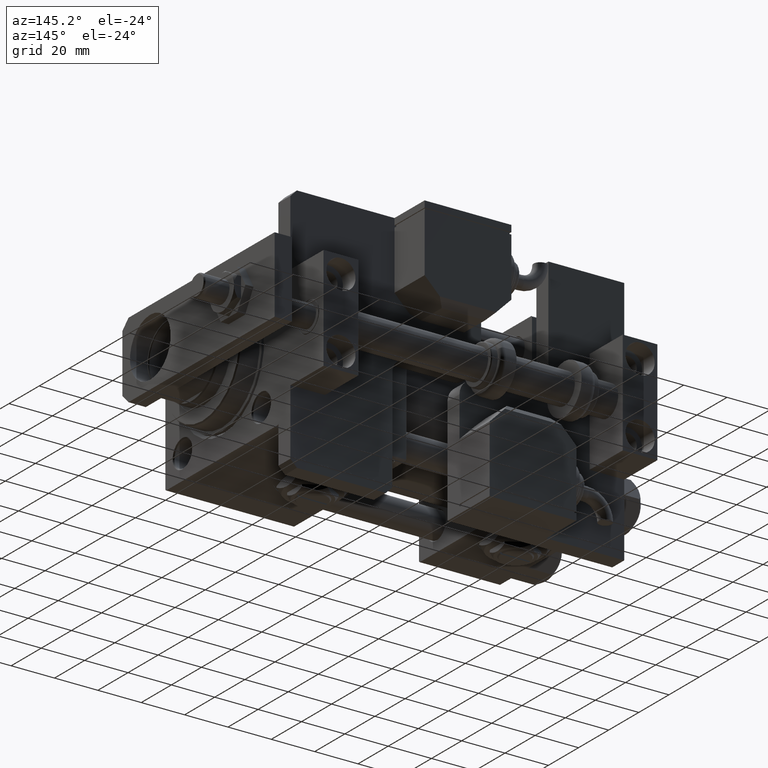
[diagram: clean part render]
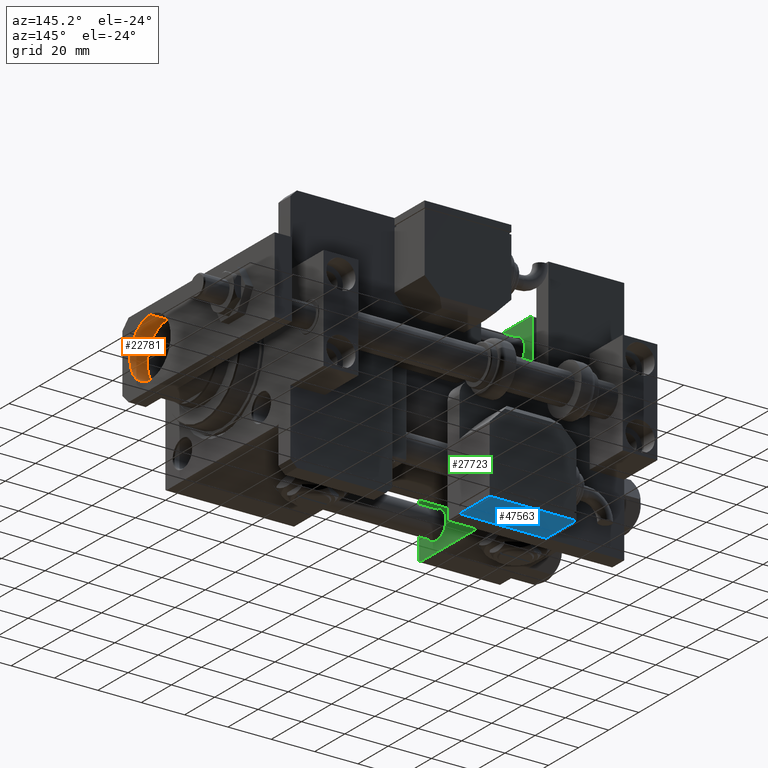
[diagram: same view with three faces highlighted in distinct colors, each labeled with its STEP entity id]
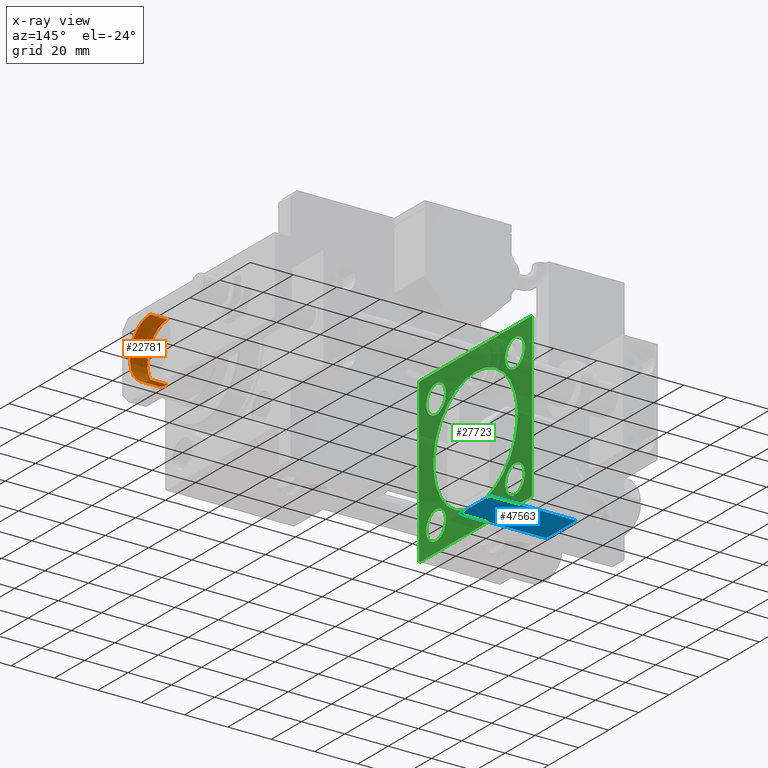
[diagram: x-ray of the same camera — body ghosted, the three highlighted faces saturated]
A machine part, auxiliary view with three faces highlighted in distinct colors.
The next image is the same camera in x-ray (body ghosted, the three faces saturated) — at least one of them is partly hidden behind the body in this view.
Their STEP definitions:

[orange] entity #22781 — the highlighted cylindrical surface (edge-blend (fillet) strip) has radius 13.5 mm, axis along (-1, -0, 0).
#196 = FACE_OUTER_BOUND ( 'NONE', #25646, .T. ) ;
#667 = LINE ( 'NONE', #53708, #36375 ) ;
#5710 = EDGE_CURVE ( 'NONE', #30811, #26266, #14705, .T. ) ;
#5725 = EDGE_CURVE ( 'NONE', #30405, #47269, #667, .T. ) ;
#6035 = CYLINDRICAL_SURFACE ( 'NONE', #15446, 13.50000000000000000 ) ;
#7289 = CARTESIAN_POINT ( 'NONE',  ( 13.50000000000000000, 18.50000000000001066, 0.000000000000000000 ) ) ;
#7716 = EDGE_CURVE ( 'NONE', #47269, #26266, #30861, .T. ) ;
#11121 = VECTOR ( 'NONE', #23488, 1000.000000000000000 ) ;
#14252 = DIRECTION ( 'NONE',  ( -0.000000000000000000, -0.000000000000000000, -1.000000000000000000 ) ) ;
#14705 = LINE ( 'NONE', #35813, #11121 ) ;
#15446 = AXIS2_PLACEMENT_3D ( 'NONE', #32124, #14252, #49718 ) ;
#16018 = CARTESIAN_POINT ( 'NONE',  ( 0.000000000000000000, 18.50000000000001066, 0.000000000000000000 ) ) ;
#17022 = ORIENTED_EDGE ( 'NONE', *, *, #5710, .T. ) ;
#20557 = AXIS2_PLACEMENT_3D ( 'NONE', #16018, #23951, #28653 ) ;
#21860 = ORIENTED_EDGE ( 'NONE', *, *, #50264, .T. ) ;
#22781 = ADVANCED_FACE ( 'NONE', ( #196 ), #6035, .F. ) ;
#23488 = DIRECTION ( 'NONE',  ( -0.000000000000000000, -0.000000000000000000, -1.000000000000000000 ) ) ;
#23951 = DIRECTION ( 'NONE',  ( 0.000000000000000000, 0.000000000000000000, 1.000000000000000000 ) ) ;
#25646 = EDGE_LOOP ( 'NONE', ( #21860, #17022, #48930, #50442 ) ) ;
#26266 = VERTEX_POINT ( 'NONE', #7289 ) ;
#27297 = CARTESIAN_POINT ( 'NONE',  ( -13.50000000000000000, 18.50000000000001066, 8.000000000000000000 ) ) ;
#28653 = DIRECTION ( 'NONE',  ( 1.000000000000000000, 0.000000000000000000, 0.000000000000000000 ) ) ;
#30081 = CARTESIAN_POINT ( 'NONE',  ( 0.000000000000000000, 18.50000000000001066, 8.000000000000000000 ) ) ;
#30405 = VERTEX_POINT ( 'NONE', #27297 ) ;
#30493 = AXIS2_PLACEMENT_3D ( 'NONE', #30081, #40018, #34752 ) ;
#30811 = VERTEX_POINT ( 'NONE', #40344 ) ;
#30861 = CIRCLE ( 'NONE', #20557, 13.50000000000000000 ) ;
#31418 = DIRECTION ( 'NONE',  ( -0.000000000000000000, -0.000000000000000000, -1.000000000000000000 ) ) ;
#32124 = CARTESIAN_POINT ( 'NONE',  ( 0.000000000000000000, 18.50000000000001066, 8.000000000000000000 ) ) ;
#34752 = DIRECTION ( 'NONE',  ( 1.000000000000000000, 0.000000000000000000, 0.000000000000000000 ) ) ;
#35813 = CARTESIAN_POINT ( 'NONE',  ( 13.50000000000000000, 18.50000000000001066, 8.000000000000000000 ) ) ;
#36375 = VECTOR ( 'NONE', #31418, 1000.000000000000000 ) ;
#40018 = DIRECTION ( 'NONE',  ( 0.000000000000000000, 0.000000000000000000, 1.000000000000000000 ) ) ;
#40344 = CARTESIAN_POINT ( 'NONE',  ( 13.50000000000000000, 18.50000000000001066, 8.000000000000000000 ) ) ;
#41023 = CARTESIAN_POINT ( 'NONE',  ( -13.50000000000000000, 18.50000000000001066, 0.000000000000000000 ) ) ;
#47269 = VERTEX_POINT ( 'NONE', #41023 ) ;
#48930 = ORIENTED_EDGE ( 'NONE', *, *, #7716, .F. ) ;
#49718 = DIRECTION ( 'NONE',  ( -1.000000000000000000, 0.000000000000000000, 0.000000000000000000 ) ) ;
#50264 = EDGE_CURVE ( 'NONE', #30405, #30811, #55792, .T. ) ;
#50442 = ORIENTED_EDGE ( 'NONE', *, *, #5725, .F. ) ;
#53708 = CARTESIAN_POINT ( 'NONE',  ( -13.50000000000000000, 18.50000000000001066, 8.000000000000000000 ) ) ;
#55792 = CIRCLE ( 'NONE', #30493, 13.50000000000000000 ) ;

[blue] entity #47563 — the highlighted planar face has unit normal (0, 0, 1).
#2049 = CARTESIAN_POINT ( 'NONE',  ( -19.99999999999994316, -17.49999999999996092, 10.00000000000000000 ) ) ;
#2483 = CARTESIAN_POINT ( 'NONE',  ( 20.00000000000005329, -17.49999999999996092, -9.999999999999998224 ) ) ;
#3836 = DIRECTION ( 'NONE',  ( 0.000000000000000000, -0.000000000000000000, 1.000000000000000000 ) ) ;
#4462 = ORIENTED_EDGE ( 'NONE', *, *, #19894, .T. ) ;
#6140 = DIRECTION ( 'NONE',  ( -1.000000000000000000, -0.000000000000000000, -0.000000000000000000 ) ) ;
#12274 = EDGE_LOOP ( 'NONE', ( #24013, #37442, #4462, #23839 ) ) ;
#13185 = PLANE ( 'NONE',  #46324 ) ;
#13698 = CARTESIAN_POINT ( 'NONE',  ( -19.99999999999994316, -17.49999999999996092, 10.00000000000000000 ) ) ;
#19894 = EDGE_CURVE ( 'NONE', #42186, #28790, #49529, .T. ) ;
#20895 = LINE ( 'NONE', #2483, #49257 ) ;
#23839 = ORIENTED_EDGE ( 'NONE', *, *, #39612, .T. ) ;
#24013 = ORIENTED_EDGE ( 'NONE', *, *, #25633, .T. ) ;
#25301 = EDGE_CURVE ( 'NONE', #49550, #42186, #56241, .T. ) ;
#25444 = LINE ( 'NONE', #42758, #57340 ) ;
#25633 = EDGE_CURVE ( 'NONE', #29930, #49550, #20895, .T. ) ;
#25735 = DIRECTION ( 'NONE',  ( 1.000000000000000000, 0.000000000000000000, 0.000000000000000000 ) ) ;
#26085 = CARTESIAN_POINT ( 'NONE',  ( 0.000000000000000000, -17.49999999999996092, 0.000000000000000000 ) ) ;
#28790 = VERTEX_POINT ( 'NONE', #28838 ) ;
#28838 = CARTESIAN_POINT ( 'NONE',  ( -19.99999999999994316, -17.49999999999996092, -9.999999999999998224 ) ) ;
#29930 = VERTEX_POINT ( 'NONE', #44800 ) ;
#32503 = DIRECTION ( 'NONE',  ( -0.000000000000000000, -0.000000000000000000, -1.000000000000000000 ) ) ;
#33104 = VECTOR ( 'NONE', #32503, 1000.000000000000000 ) ;
#34300 = FACE_OUTER_BOUND ( 'NONE', #12274, .T. ) ;
#37442 = ORIENTED_EDGE ( 'NONE', *, *, #25301, .T. ) ;
#39567 = DIRECTION ( 'NONE',  ( 0.000000000000000000, 1.000000000000000000, 0.000000000000000000 ) ) ;
#39612 = EDGE_CURVE ( 'NONE', #28790, #29930, #25444, .T. ) ;
#40829 = VECTOR ( 'NONE', #6140, 1000.000000000000000 ) ;
#42186 = VERTEX_POINT ( 'NONE', #13698 ) ;
#42758 = CARTESIAN_POINT ( 'NONE',  ( -19.99999999999994316, -17.49999999999996092, -9.999999999999998224 ) ) ;
#44532 = CARTESIAN_POINT ( 'NONE',  ( -19.99999999999994316, -17.49999999999996092, -9.999999999999998224 ) ) ;
#44800 = CARTESIAN_POINT ( 'NONE',  ( 20.00000000000005329, -17.49999999999996092, -9.999999999999998224 ) ) ;
#46324 = AXIS2_PLACEMENT_3D ( 'NONE', #26085, #39567, #3836 ) ;
#47563 = ADVANCED_FACE ( 'NONE', ( #34300 ), #13185, .F. ) ;
#49257 = VECTOR ( 'NONE', #52273, 1000.000000000000000 ) ;
#49529 = LINE ( 'NONE', #44532, #33104 ) ;
#49550 = VERTEX_POINT ( 'NONE', #54533 ) ;
#52273 = DIRECTION ( 'NONE',  ( 0.000000000000000000, 0.000000000000000000, 1.000000000000000000 ) ) ;
#54533 = CARTESIAN_POINT ( 'NONE',  ( 20.00000000000005329, -17.49999999999996092, 10.00000000000000000 ) ) ;
#56241 = LINE ( 'NONE', #2049, #40829 ) ;
#57340 = VECTOR ( 'NONE', #25735, 1000.000000000000000 ) ;

[green] entity #27723 — the highlighted planar face has unit normal (-1, 0, 0).
#289 = VERTEX_POINT ( 'NONE', #31465 ) ;
#304 = DIRECTION ( 'NONE',  ( 0.000000000000000000, 0.000000000000000000, -1.000000000000000000 ) ) ;
#368 = CARTESIAN_POINT ( 'NONE',  ( 37.00000000000000000, -37.50000000000000000, -37.00000000000003553 ) ) ;
#1063 = VERTEX_POINT ( 'NONE', #49116 ) ;
#1327 = LINE ( 'NONE', #28854, #43628 ) ;
#1603 = CARTESIAN_POINT ( 'NONE',  ( 37.00000000000000000, -37.50000000000000711, 36.99999999999999289 ) ) ;
#1606 = CARTESIAN_POINT ( 'NONE',  ( 37.00000000000000000, -37.00000000000002132, -37.50000000000000711 ) ) ;
#2679 = LINE ( 'NONE', #20805, #26967 ) ;
#3318 = DIRECTION ( 'NONE',  ( 0.000000000000000000, 0.000000000000000000, 1.000000000000000000 ) ) ;
#3414 = EDGE_LOOP ( 'NONE', ( #33853, #51745 ) ) ;
#3817 = DIRECTION ( 'NONE',  ( -0.000000000000000000, 0.7071067811865474617, 0.7071067811865474617 ) ) ;
#4129 = EDGE_CURVE ( 'NONE', #34092, #5463, #23910, .T. ) ;
#4283 = CIRCLE ( 'NONE', #34214, 6.500000000000008882 ) ;
#4919 = EDGE_CURVE ( 'NONE', #289, #51970, #2679, .T. ) ;
#5060 = ORIENTED_EDGE ( 'NONE', *, *, #10148, .T. ) ;
#5183 = CARTESIAN_POINT ( 'NONE',  ( 37.00000000000000000, 37.49999999999999289, -37.50000000000000000 ) ) ;
#5457 = DIRECTION ( 'NONE',  ( 0.000000000000000000, -1.000000000000000000, -9.251858538542971581E-17 ) ) ;
#5463 = VERTEX_POINT ( 'NONE', #1606 ) ;
#6037 = LINE ( 'NONE', #33564, #10443 ) ;
#6074 = VERTEX_POINT ( 'NONE', #50394 ) ;
#6163 = AXIS2_PLACEMENT_3D ( 'NONE', #12446, #39974, #25624 ) ;
#6336 = DIRECTION ( 'NONE',  ( 0.000000000000000000, 0.7071067811865524577, -0.7071067811865426878 ) ) ;
#6577 = DIRECTION ( 'NONE',  ( 0.000000000000000000, 9.251858538542971581E-17, -1.000000000000000000 ) ) ;
#6736 = VERTEX_POINT ( 'NONE', #20753 ) ;
#6745 = DIRECTION ( 'NONE',  ( 1.000000000000000000, -0.000000000000000000, 0.000000000000000000 ) ) ;
#6821 = EDGE_LOOP ( 'NONE', ( #24500, #53790 ) ) ;
#6875 = LINE ( 'NONE', #25022, #57023 ) ;
#7176 = EDGE_CURVE ( 'NONE', #6074, #18375, #6875, .T. ) ;
#7874 = VERTEX_POINT ( 'NONE', #20073 ) ;
#8342 = FACE_BOUND ( 'NONE', #18694, .T. ) ;
#8731 = ORIENTED_EDGE ( 'NONE', *, *, #7176, .T. ) ;
#9620 = EDGE_CURVE ( 'NONE', #289, #5463, #44457, .T. ) ;
#9747 = CARTESIAN_POINT ( 'NONE',  ( 37.00000000000000000, 8.269258236473776482E-16, -28.00000000000000000 ) ) ;
#9801 = CIRCLE ( 'NONE', #50048, 6.500000000000030198 ) ;
#9860 = AXIS2_PLACEMENT_3D ( 'NONE', #45500, #35824, #53715 ) ;
#10148 = EDGE_CURVE ( 'NONE', #57334, #1063, #41722, .T. ) ;
#10334 = ORIENTED_EDGE ( 'NONE', *, *, #45963, .T. ) ;
#10443 = VECTOR ( 'NONE', #5457, 1000.000000000000000 ) ;
#10828 = CARTESIAN_POINT ( 'NONE',  ( 37.00000000000000000, -37.00000000000000711, 37.49999999999999289 ) ) ;
#11263 = CARTESIAN_POINT ( 'NONE',  ( 37.00000000000000000, 26.14999999999999858, -26.15000000000000213 ) ) ;
#11351 = DIRECTION ( 'NONE',  ( 0.000000000000000000, 0.000000000000000000, 1.000000000000000000 ) ) ;
#11662 = ORIENTED_EDGE ( 'NONE', *, *, #4129, .T. ) ;
#12083 = EDGE_CURVE ( 'NONE', #18375, #57334, #6037, .T. ) ;
#12446 = CARTESIAN_POINT ( 'NONE',  ( 37.00000000000000000, 0.000000000000000000, 0.000000000000000000 ) ) ;
#13507 = EDGE_CURVE ( 'NONE', #6736, #24163, #55436, .T. ) ;
#13689 = DIRECTION ( 'NONE',  ( 0.000000000000000000, 0.000000000000000000, 1.000000000000000000 ) ) ;
#14205 = EDGE_CURVE ( 'NONE', #7874, #21260, #40513, .T. ) ;
#15365 = DIRECTION ( 'NONE',  ( 0.000000000000000000, 0.000000000000000000, 1.000000000000000000 ) ) ;
#15718 = VECTOR ( 'NONE', #6336, 1000.000000000000000 ) ;
#15721 = ORIENTED_EDGE ( 'NONE', *, *, #24279, .T. ) ;
#16231 = EDGE_CURVE ( 'NONE', #48295, #30310, #46090, .T. ) ;
#16858 = ORIENTED_EDGE ( 'NONE', *, *, #35998, .F. ) ;
#17608 = CARTESIAN_POINT ( 'NONE',  ( 37.00000000000000000, 26.14999999999999858, -32.65000000000003411 ) ) ;
#18375 = VERTEX_POINT ( 'NONE', #30040 ) ;
#18694 = EDGE_LOOP ( 'NONE', ( #15721, #27406 ) ) ;
#20073 = CARTESIAN_POINT ( 'NONE',  ( 37.00000000000000000, -26.14999999999999147, 32.65000000000001990 ) ) ;
#20148 = CARTESIAN_POINT ( 'NONE',  ( 37.00000000000000000, -26.14999999999999147, -19.65000000000000924 ) ) ;
#20753 = CARTESIAN_POINT ( 'NONE',  ( 37.00000000000000000, 26.14999999999999858, -19.64999999999997371 ) ) ;
#20805 = CARTESIAN_POINT ( 'NONE',  ( 37.00000000000000000, 37.49999999999999289, -36.99999999999998579 ) ) ;
#21034 = AXIS2_PLACEMENT_3D ( 'NONE', #23960, #38303, #11351 ) ;
#21237 = DIRECTION ( 'NONE',  ( 0.000000000000000000, 0.000000000000000000, 1.000000000000000000 ) ) ;
#21260 = VERTEX_POINT ( 'NONE', #23590 ) ;
#22323 = ORIENTED_EDGE ( 'NONE', *, *, #37108, .T. ) ;
#22491 = EDGE_CURVE ( 'NONE', #30310, #48295, #37870, .T. ) ;
#22539 = DIRECTION ( 'NONE',  ( -1.000000000000000000, 0.000000000000000000, -0.000000000000000000 ) ) ;
#22576 = VERTEX_POINT ( 'NONE', #20148 ) ;
#23469 = VECTOR ( 'NONE', #304, 1000.000000000000000 ) ;
#23590 = CARTESIAN_POINT ( 'NONE',  ( 37.00000000000000000, -26.14999999999999147, 19.65000000000000213 ) ) ;
#23817 = DIRECTION ( 'NONE',  ( -1.000000000000000000, 0.000000000000000000, -0.000000000000000000 ) ) ;
#23862 = ORIENTED_EDGE ( 'NONE', *, *, #4919, .T. ) ;
#23910 = LINE ( 'NONE', #42657, #15718 ) ;
#23960 = CARTESIAN_POINT ( 'NONE',  ( 37.00000000000000000, -2.602085213965210642E-15, 0.000000000000000000 ) ) ;
#24163 = VERTEX_POINT ( 'NONE', #17608 ) ;
#24279 = EDGE_CURVE ( 'NONE', #21260, #7874, #4283, .T. ) ;
#24500 = ORIENTED_EDGE ( 'NONE', *, *, #22491, .F. ) ;
#24737 = DIRECTION ( 'NONE',  ( 0.000000000000000000, -0.7071067811865474617, 0.7071067811865474617 ) ) ;
#25022 = CARTESIAN_POINT ( 'NONE',  ( 37.00000000000000000, 36.99999999999999289, 37.50000000000000000 ) ) ;
#25067 = CIRCLE ( 'NONE', #40955, 6.500000000000002665 ) ;
#25336 = FACE_OUTER_BOUND ( 'NONE', #41165, .T. ) ;
#25485 = EDGE_CURVE ( 'NONE', #1063, #34092, #1327, .T. ) ;
#25624 = DIRECTION ( 'NONE',  ( -0.000000000000000000, 0.000000000000000000, 1.000000000000000000 ) ) ;
#26967 = VECTOR ( 'NONE', #3817, 1000.000000000000114 ) ;
#27406 = ORIENTED_EDGE ( 'NONE', *, *, #14205, .T. ) ;
#27723 = ADVANCED_FACE ( 'NONE', ( #34422, #29755, #8342, #35285, #52605, #25336 ), #35579, .F. ) ;
#28692 = VERTEX_POINT ( 'NONE', #44979 ) ;
#28854 = CARTESIAN_POINT ( 'NONE',  ( 37.00000000000000000, -37.50000000000000711, 37.49999999999999289 ) ) ;
#29225 = AXIS2_PLACEMENT_3D ( 'NONE', #38094, #6745, #38373 ) ;
#29229 = EDGE_CURVE ( 'NONE', #22576, #37399, #25067, .T. ) ;
#29679 = CARTESIAN_POINT ( 'NONE',  ( 37.00000000000000000, -2.602085213965210642E-15, 28.00000000000000000 ) ) ;
#29755 = FACE_BOUND ( 'NONE', #37295, .T. ) ;
#30040 = CARTESIAN_POINT ( 'NONE',  ( 37.00000000000000000, 36.99999999999999289, 37.50000000000000000 ) ) ;
#30310 = VERTEX_POINT ( 'NONE', #29679 ) ;
#30916 = CARTESIAN_POINT ( 'NONE',  ( 37.00000000000000000, -26.14999999999999147, 26.15000000000000924 ) ) ;
#30939 = VECTOR ( 'NONE', #37325, 1000.000000000000114 ) ;
#31465 = CARTESIAN_POINT ( 'NONE',  ( 37.00000000000000000, 36.99999999999997868, -37.50000000000000000 ) ) ;
#31555 = DIRECTION ( 'NONE',  ( 0.000000000000000000, -1.000000000000000000, -9.251858538542972814E-17 ) ) ;
#32988 = AXIS2_PLACEMENT_3D ( 'NONE', #42586, #56086, #3318 ) ;
#33297 = VERTEX_POINT ( 'NONE', #40769 ) ;
#33564 = CARTESIAN_POINT ( 'NONE',  ( 37.00000000000000000, 37.49999999999999289, 37.50000000000000000 ) ) ;
#33655 = ORIENTED_EDGE ( 'NONE', *, *, #9620, .F. ) ;
#33853 = ORIENTED_EDGE ( 'NONE', *, *, #56965, .T. ) ;
#34047 = AXIS2_PLACEMENT_3D ( 'NONE', #54914, #23817, #55211 ) ;
#34092 = VERTEX_POINT ( 'NONE', #368 ) ;
#34214 = AXIS2_PLACEMENT_3D ( 'NONE', #49743, #35374, #13689 ) ;
#34422 = FACE_BOUND ( 'NONE', #3414, .T. ) ;
#35050 = ORIENTED_EDGE ( 'NONE', *, *, #13507, .T. ) ;
#35285 = FACE_BOUND ( 'NONE', #52617, .T. ) ;
#35374 = DIRECTION ( 'NONE',  ( -1.000000000000000000, 0.000000000000000000, -0.000000000000000000 ) ) ;
#35579 = PLANE ( 'NONE',  #6163 ) ;
#35824 = DIRECTION ( 'NONE',  ( -1.000000000000000000, 0.000000000000000000, -0.000000000000000000 ) ) ;
#35887 = ORIENTED_EDGE ( 'NONE', *, *, #25485, .T. ) ;
#35998 = EDGE_CURVE ( 'NONE', #6074, #51970, #50110, .T. ) ;
#37108 = EDGE_CURVE ( 'NONE', #24163, #6736, #51606, .T. ) ;
#37295 = EDGE_LOOP ( 'NONE', ( #22323, #35050 ) ) ;
#37325 = DIRECTION ( 'NONE',  ( -0.000000000000000000, -0.7071067811865474617, -0.7071067811865474617 ) ) ;
#37399 = VERTEX_POINT ( 'NONE', #41665 ) ;
#37870 = CIRCLE ( 'NONE', #21034, 28.00000000000000000 ) ;
#38094 = CARTESIAN_POINT ( 'NONE',  ( 37.00000000000000000, -2.602085213965210642E-15, 0.000000000000000000 ) ) ;
#38303 = DIRECTION ( 'NONE',  ( 1.000000000000000000, -0.000000000000000000, 0.000000000000000000 ) ) ;
#38373 = DIRECTION ( 'NONE',  ( 0.000000000000000000, 0.000000000000000000, 1.000000000000000000 ) ) ;
#39343 = VECTOR ( 'NONE', #31555, 1000.000000000000000 ) ;
#39416 = AXIS2_PLACEMENT_3D ( 'NONE', #11263, #55545, #15365 ) ;
#39974 = DIRECTION ( 'NONE',  ( -1.000000000000000000, 0.000000000000000000, -0.000000000000000000 ) ) ;
#40133 = CARTESIAN_POINT ( 'NONE',  ( 37.00000000000000000, -26.14999999999999147, -26.15000000000000924 ) ) ;
#40513 = CIRCLE ( 'NONE', #54555, 6.500000000000008882 ) ;
#40769 = CARTESIAN_POINT ( 'NONE',  ( 37.00000000000000000, 26.14999999999999858, 32.65000000000004121 ) ) ;
#40955 = AXIS2_PLACEMENT_3D ( 'NONE', #40133, #22539, #45124 ) ;
#41001 = CARTESIAN_POINT ( 'NONE',  ( 37.00000000000000000, 37.49999999999999289, 37.50000000000000000 ) ) ;
#41165 = EDGE_LOOP ( 'NONE', ( #33655, #23862, #16858, #8731, #50262, #5060, #35887, #11662 ) ) ;
#41665 = CARTESIAN_POINT ( 'NONE',  ( 37.00000000000000000, -26.14999999999999147, -32.65000000000001279 ) ) ;
#41722 = LINE ( 'NONE', #1603, #30939 ) ;
#42586 = CARTESIAN_POINT ( 'NONE',  ( 37.00000000000000000, 26.14999999999999858, -26.15000000000000213 ) ) ;
#42648 = CIRCLE ( 'NONE', #9860, 6.500000000000002665 ) ;
#42657 = CARTESIAN_POINT ( 'NONE',  ( 37.00000000000000000, -37.00000000000002132, -37.50000000000000711 ) ) ;
#42893 = DIRECTION ( 'NONE',  ( -1.000000000000000000, 0.000000000000000000, -0.000000000000000000 ) ) ;
#42950 = DIRECTION ( 'NONE',  ( -1.000000000000000000, 0.000000000000000000, -0.000000000000000000 ) ) ;
#43628 = VECTOR ( 'NONE', #6577, 1000.000000000000000 ) ;
#44044 = ORIENTED_EDGE ( 'NONE', *, *, #48107, .T. ) ;
#44457 = LINE ( 'NONE', #5183, #39343 ) ;
#44979 = CARTESIAN_POINT ( 'NONE',  ( 37.00000000000000000, 26.14999999999999858, 19.64999999999997016 ) ) ;
#45124 = DIRECTION ( 'NONE',  ( 0.000000000000000000, 0.000000000000000000, 1.000000000000000000 ) ) ;
#45244 = CARTESIAN_POINT ( 'NONE',  ( 37.00000000000000000, 37.49999999999999289, -36.99999999999998579 ) ) ;
#45500 = CARTESIAN_POINT ( 'NONE',  ( 37.00000000000000000, -26.14999999999999147, -26.15000000000000924 ) ) ;
#45963 = EDGE_CURVE ( 'NONE', #33297, #28692, #56535, .T. ) ;
#46090 = CIRCLE ( 'NONE', #29225, 28.00000000000000000 ) ;
#48107 = EDGE_CURVE ( 'NONE', #28692, #33297, #9801, .T. ) ;
#48295 = VERTEX_POINT ( 'NONE', #9747 ) ;
#49116 = CARTESIAN_POINT ( 'NONE',  ( 37.00000000000000000, -37.50000000000000711, 36.99999999999999289 ) ) ;
#49743 = CARTESIAN_POINT ( 'NONE',  ( 37.00000000000000000, -26.14999999999999147, 26.15000000000000924 ) ) ;
#50048 = AXIS2_PLACEMENT_3D ( 'NONE', #56964, #42893, #51989 ) ;
#50110 = LINE ( 'NONE', #41001, #23469 ) ;
#50262 = ORIENTED_EDGE ( 'NONE', *, *, #12083, .T. ) ;
#50394 = CARTESIAN_POINT ( 'NONE',  ( 37.00000000000000000, 37.49999999999999289, 37.00000000000000000 ) ) ;
#51606 = CIRCLE ( 'NONE', #39416, 6.500000000000030198 ) ;
#51745 = ORIENTED_EDGE ( 'NONE', *, *, #29229, .T. ) ;
#51970 = VERTEX_POINT ( 'NONE', #45244 ) ;
#51989 = DIRECTION ( 'NONE',  ( 0.000000000000000000, 0.000000000000000000, 1.000000000000000000 ) ) ;
#52605 = FACE_BOUND ( 'NONE', #6821, .T. ) ;
#52617 = EDGE_LOOP ( 'NONE', ( #44044, #10334 ) ) ;
#53715 = DIRECTION ( 'NONE',  ( 0.000000000000000000, 0.000000000000000000, 1.000000000000000000 ) ) ;
#53790 = ORIENTED_EDGE ( 'NONE', *, *, #16231, .F. ) ;
#54555 = AXIS2_PLACEMENT_3D ( 'NONE', #30916, #42950, #21237 ) ;
#54914 = CARTESIAN_POINT ( 'NONE',  ( 37.00000000000000000, 26.14999999999999858, 26.15000000000000213 ) ) ;
#55211 = DIRECTION ( 'NONE',  ( 0.000000000000000000, 0.000000000000000000, 1.000000000000000000 ) ) ;
#55436 = CIRCLE ( 'NONE', #32988, 6.500000000000030198 ) ;
#55545 = DIRECTION ( 'NONE',  ( -1.000000000000000000, 0.000000000000000000, -0.000000000000000000 ) ) ;
#56086 = DIRECTION ( 'NONE',  ( -1.000000000000000000, 0.000000000000000000, -0.000000000000000000 ) ) ;
#56535 = CIRCLE ( 'NONE', #34047, 6.500000000000030198 ) ;
#56964 = CARTESIAN_POINT ( 'NONE',  ( 37.00000000000000000, 26.14999999999999858, 26.15000000000000213 ) ) ;
#56965 = EDGE_CURVE ( 'NONE', #37399, #22576, #42648, .T. ) ;
#57023 = VECTOR ( 'NONE', #24737, 1000.000000000000114 ) ;
#57334 = VERTEX_POINT ( 'NONE', #10828 ) ;